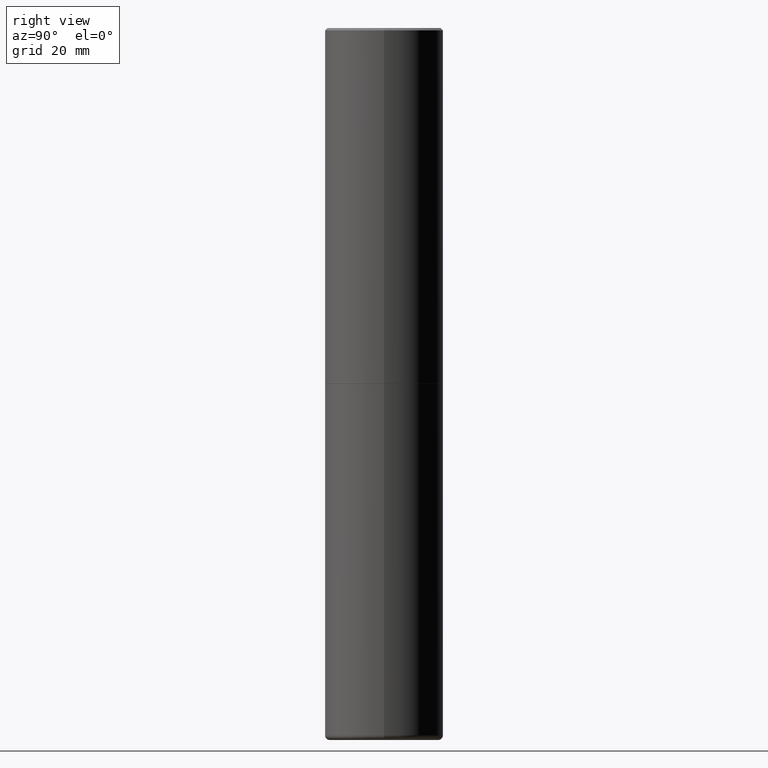
[diagram: clean part render]
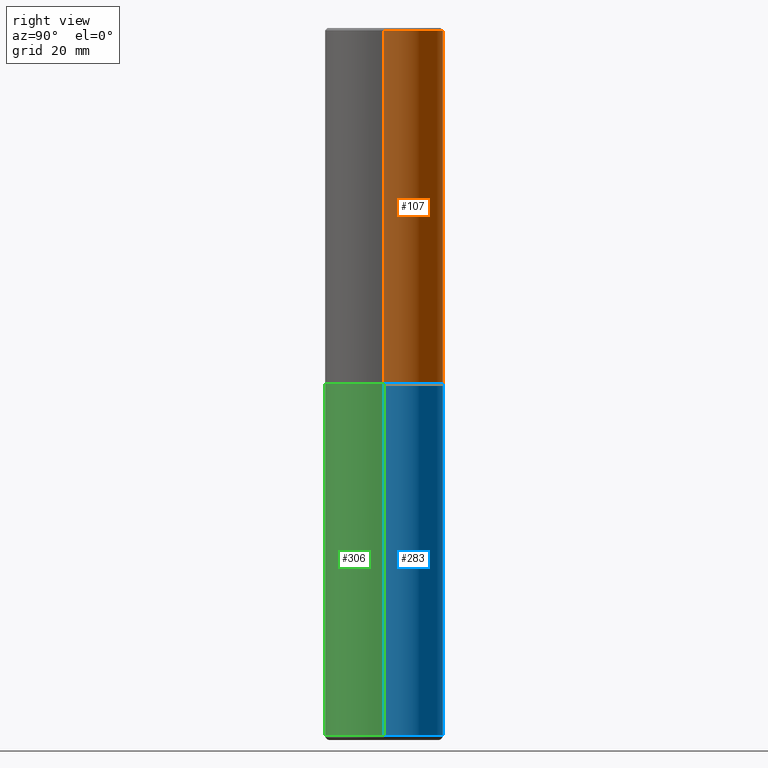
[diagram: same view with three faces highlighted in distinct colors, each labeled with its STEP entity id]
A machine part, right view with three faces highlighted in distinct colors.
Their STEP definitions:

[orange] entity #107 — the highlighted cylindrical surface (partial cylindrical patch) has radius 12.5006 mm, axis along (-0, 0, 1).
#6 = CARTESIAN_POINT ( 'NONE',  ( 0.4921500000000000319, -3.446223716380123138E-15, -0.02000000000000010797 ) ) ;
#16 = CYLINDRICAL_SURFACE ( 'NONE', #273, 0.4921500000000001984 ) ;
#27 = VERTEX_POINT ( 'NONE', #185 ) ;
#33 = VERTEX_POINT ( 'NONE', #6 ) ;
#35 = DIRECTION ( 'NONE',  ( -2.445468806185136597E-29, 3.491481338843145583E-15, 1.000000000000000000 ) ) ;
#37 = LINE ( 'NONE', #223, #174 ) ;
#42 = DIRECTION ( 'NONE',  ( -2.445468806185136597E-29, 3.491481338843145583E-15, 1.000000000000000000 ) ) ;
#63 = AXIS2_PLACEMENT_3D ( 'NONE', #154, #414, #378 ) ;
#84 = CARTESIAN_POINT ( 'NONE',  ( 0.4921500000000003094, -1.374247054968661252E-14, -2.951700000000000212 ) ) ;
#89 = VERTEX_POINT ( 'NONE', #84 ) ;
#93 = DIRECTION ( 'NONE',  ( -2.445468806185136877E-29, 3.491481338843145188E-15, 1.000000000000000000 ) ) ;
#107 = ADVANCED_FACE ( 'NONE', ( #220 ), #16, .T. ) ;
#113 = ORIENTED_EDGE ( 'NONE', *, *, #339, .T. ) ;
#120 = DIRECTION ( 'NONE',  ( -2.445468806185136877E-29, 3.491481338843145188E-15, 1.000000000000000000 ) ) ;
#125 = CARTESIAN_POINT ( 'NONE',  ( 0.000000000000000000, 0.000000000000000000, 0.000000000000000000 ) ) ;
#129 = DIRECTION ( 'NONE',  ( 1.000000000000000000, -6.982962677686265922E-15, 0.000000000000000000 ) ) ;
#154 = CARTESIAN_POINT ( 'NONE',  ( 4.890937612370299433E-31, -6.982962677686328587E-17, -0.02000000000000010797 ) ) ;
#169 = ORIENTED_EDGE ( 'NONE', *, *, #197, .F. ) ;
#174 = VECTOR ( 'NONE', #93, 39.37007874015748143 ) ;
#185 = CARTESIAN_POINT ( 'NONE',  ( -0.4921500000000003094, -1.690881473276752982E-15, -2.951700000000000212 ) ) ;
#197 = EDGE_CURVE ( 'NONE', #33, #281, #262, .T. ) ;
#204 = AXIS2_PLACEMENT_3D ( 'NONE', #415, #35, #129 ) ;
#220 = FACE_OUTER_BOUND ( 'NONE', #368, .T. ) ;
#223 = CARTESIAN_POINT ( 'NONE',  ( -0.4921500000000001984, 3.496936074043334475E-15, -2.420853904668952630E-29 ) ) ;
#224 = LINE ( 'NONE', #260, #297 ) ;
#245 = ORIENTED_EDGE ( 'NONE', *, *, #277, .T. ) ;
#260 = CARTESIAN_POINT ( 'NONE',  ( 0.4921500000000001984, -3.436665081823297354E-15, 2.399810400207970443E-29 ) ) ;
#262 = CIRCLE ( 'NONE', #63, 0.4921500000000000319 ) ;
#273 = AXIS2_PLACEMENT_3D ( 'NONE', #125, #42, #399 ) ;
#277 = EDGE_CURVE ( 'NONE', #27, #281, #37, .T. ) ;
#281 = VERTEX_POINT ( 'NONE', #390 ) ;
#297 = VECTOR ( 'NONE', #120, 39.37007874015748143 ) ;
#327 = EDGE_CURVE ( 'NONE', #89, #33, #224, .T. ) ;
#339 = EDGE_CURVE ( 'NONE', #89, #27, #351, .T. ) ;
#351 = CIRCLE ( 'NONE', #204, 0.4921500000000003094 ) ;
#368 = EDGE_LOOP ( 'NONE', ( #113, #245, #169, #418 ) ) ;
#378 = DIRECTION ( 'NONE',  ( 1.000000000000000000, -6.982962677686265922E-15, 0.000000000000000000 ) ) ;
#390 = CARTESIAN_POINT ( 'NONE',  ( -0.4921500000000000319, 3.366835455046432873E-15, -0.02000000000000010797 ) ) ;
#399 = DIRECTION ( 'NONE',  ( 1.000000000000000000, -6.982962677686266711E-15, 4.876176775795935232E-29 ) ) ;
#414 = DIRECTION ( 'NONE',  ( -2.445468806185136597E-29, 3.491481338843145583E-15, 1.000000000000000000 ) ) ;
#415 = CARTESIAN_POINT ( 'NONE',  ( 7.218290275216666916E-29, -1.030580546786331359E-14, -2.951700000000000212 ) ) ;
#418 = ORIENTED_EDGE ( 'NONE', *, *, #327, .F. ) ;

[blue] entity #283 — the highlighted cylindrical surface (partial cylindrical patch) has radius 12.5006 mm, axis along (-0, 0, 1).
#10 = CIRCLE ( 'NONE', #192, 0.4921500000000000319 ) ;
#31 = DIRECTION ( 'NONE',  ( -2.445468806185136597E-29, 3.491481338843145583E-15, 1.000000000000000000 ) ) ;
#49 = DIRECTION ( 'NONE',  ( 1.000000000000000000, -6.982962677686265133E-15, 0.000000000000000000 ) ) ;
#61 = EDGE_CURVE ( 'NONE', #406, #402, #10, .T. ) ;
#72 = CARTESIAN_POINT ( 'NONE',  ( -0.4921499999999999764, 3.496936074043332897E-15, -2.420853904668951509E-29 ) ) ;
#81 = ORIENTED_EDGE ( 'NONE', *, *, #96, .F. ) ;
#96 = EDGE_CURVE ( 'NONE', #406, #250, #239, .T. ) ;
#121 = ORIENTED_EDGE ( 'NONE', *, *, #188, .F. ) ;
#126 = CARTESIAN_POINT ( 'NONE',  ( 0.4921499999999999764, -1.374596203102545079E-14, -2.952700000000000102 ) ) ;
#130 = ORIENTED_EDGE ( 'NONE', *, *, #133, .T. ) ;
#133 = EDGE_CURVE ( 'NONE', #402, #149, #153, .T. ) ;
#139 = CIRCLE ( 'NONE', #251, 0.4921499999999999764 ) ;
#149 = VERTEX_POINT ( 'NONE', #249 ) ;
#153 = LINE ( 'NONE', #72, #380 ) ;
#157 = FACE_OUTER_BOUND ( 'NONE', #213, .T. ) ;
#160 = DIRECTION ( 'NONE',  ( -2.445468806185136597E-29, 3.491481338843145583E-15, 1.000000000000000000 ) ) ;
#164 = VECTOR ( 'NONE', #341, 39.37007874015748143 ) ;
#170 = DIRECTION ( 'NONE',  ( -2.445468806185136877E-29, 3.491481338843145188E-15, 1.000000000000000000 ) ) ;
#181 = CARTESIAN_POINT ( 'NONE',  ( 7.220735744022852519E-29, -1.030929694920215502E-14, -2.952700000000000102 ) ) ;
#184 = AXIS2_PLACEMENT_3D ( 'NONE', #347, #160, #417 ) ;
#188 = EDGE_CURVE ( 'NONE', #250, #149, #139, .T. ) ;
#192 = AXIS2_PLACEMENT_3D ( 'NONE', #333, #206, #49 ) ;
#194 = CARTESIAN_POINT ( 'NONE',  ( 0.4921500000000002539, -2.391804376361107326E-14, -5.866100000000000314 ) ) ;
#200 = CARTESIAN_POINT ( 'NONE',  ( -0.4921500000000002539, -1.698444260774444222E-14, -5.866100000000000314 ) ) ;
#206 = DIRECTION ( 'NONE',  ( -2.445468806185136597E-29, 3.491481338843145583E-15, 1.000000000000000000 ) ) ;
#209 = CARTESIAN_POINT ( 'NONE',  ( 0.4921499999999999764, -3.436665081823295777E-15, 2.399810400207969603E-29 ) ) ;
#213 = EDGE_LOOP ( 'NONE', ( #375, #130, #121, #81 ) ) ;
#239 = LINE ( 'NONE', #209, #164 ) ;
#249 = CARTESIAN_POINT ( 'NONE',  ( -0.4921499999999999764, -1.189840174145163414E-14, -2.952700000000000102 ) ) ;
#250 = VERTEX_POINT ( 'NONE', #126 ) ;
#251 = AXIS2_PLACEMENT_3D ( 'NONE', #181, #31, #407 ) ;
#253 = CYLINDRICAL_SURFACE ( 'NONE', #184, 0.4921499999999999764 ) ;
#283 = ADVANCED_FACE ( 'NONE', ( #157 ), #253, .T. ) ;
#333 = CARTESIAN_POINT ( 'NONE',  ( 1.434536456396262923E-28, -2.048137868178777591E-14, -5.866100000000000314 ) ) ;
#341 = DIRECTION ( 'NONE',  ( -2.445468806185136877E-29, 3.491481338843145188E-15, 1.000000000000000000 ) ) ;
#347 = CARTESIAN_POINT ( 'NONE',  ( 0.000000000000000000, 0.000000000000000000, 0.000000000000000000 ) ) ;
#375 = ORIENTED_EDGE ( 'NONE', *, *, #61, .T. ) ;
#380 = VECTOR ( 'NONE', #170, 39.37007874015748143 ) ;
#402 = VERTEX_POINT ( 'NONE', #200 ) ;
#406 = VERTEX_POINT ( 'NONE', #194 ) ;
#407 = DIRECTION ( 'NONE',  ( 1.000000000000000000, -6.982962677686265922E-15, 0.000000000000000000 ) ) ;
#417 = DIRECTION ( 'NONE',  ( 1.000000000000000000, -6.982962677686265922E-15, 4.876176775795935793E-29 ) ) ;

[green] entity #306 — the highlighted cylindrical surface (partial cylindrical patch) has radius 12.5006 mm, axis along (-0, 0, 1).
#1 = CARTESIAN_POINT ( 'NONE',  ( 7.220735744022852519E-29, -1.030929694920215502E-14, -2.952700000000000102 ) ) ;
#8 = DIRECTION ( 'NONE',  ( 1.000000000000000000, -6.982962677686265922E-15, 0.000000000000000000 ) ) ;
#72 = CARTESIAN_POINT ( 'NONE',  ( -0.4921499999999999764, 3.496936074043332897E-15, -2.420853904668951509E-29 ) ) ;
#73 = CIRCLE ( 'NONE', #228, 0.4921500000000000319 ) ;
#86 = CIRCLE ( 'NONE', #198, 0.4921499999999999764 ) ;
#96 = EDGE_CURVE ( 'NONE', #406, #250, #239, .T. ) ;
#108 = EDGE_LOOP ( 'NONE', ( #309, #241, #248, #376 ) ) ;
#126 = CARTESIAN_POINT ( 'NONE',  ( 0.4921499999999999764, -1.374596203102545079E-14, -2.952700000000000102 ) ) ;
#133 = EDGE_CURVE ( 'NONE', #402, #149, #153, .T. ) ;
#149 = VERTEX_POINT ( 'NONE', #249 ) ;
#153 = LINE ( 'NONE', #72, #380 ) ;
#155 = FACE_OUTER_BOUND ( 'NONE', #108, .T. ) ;
#163 = DIRECTION ( 'NONE',  ( 1.000000000000000000, -6.982962677686265133E-15, 0.000000000000000000 ) ) ;
#164 = VECTOR ( 'NONE', #341, 39.37007874015748143 ) ;
#170 = DIRECTION ( 'NONE',  ( -2.445468806185136877E-29, 3.491481338843145188E-15, 1.000000000000000000 ) ) ;
#182 = CYLINDRICAL_SURFACE ( 'NONE', #404, 0.4921499999999999764 ) ;
#190 = DIRECTION ( 'NONE',  ( 1.000000000000000000, -6.982962677686265922E-15, 4.876176775795935793E-29 ) ) ;
#194 = CARTESIAN_POINT ( 'NONE',  ( 0.4921500000000002539, -2.391804376361107326E-14, -5.866100000000000314 ) ) ;
#198 = AXIS2_PLACEMENT_3D ( 'NONE', #1, #266, #8 ) ;
#200 = CARTESIAN_POINT ( 'NONE',  ( -0.4921500000000002539, -1.698444260774444222E-14, -5.866100000000000314 ) ) ;
#205 = EDGE_CURVE ( 'NONE', #149, #250, #86, .T. ) ;
#209 = CARTESIAN_POINT ( 'NONE',  ( 0.4921499999999999764, -3.436665081823295777E-15, 2.399810400207969603E-29 ) ) ;
#214 = CARTESIAN_POINT ( 'NONE',  ( 0.000000000000000000, 0.000000000000000000, 0.000000000000000000 ) ) ;
#225 = EDGE_CURVE ( 'NONE', #402, #406, #73, .T. ) ;
#228 = AXIS2_PLACEMENT_3D ( 'NONE', #303, #335, #163 ) ;
#239 = LINE ( 'NONE', #209, #164 ) ;
#241 = ORIENTED_EDGE ( 'NONE', *, *, #225, .T. ) ;
#248 = ORIENTED_EDGE ( 'NONE', *, *, #96, .T. ) ;
#249 = CARTESIAN_POINT ( 'NONE',  ( -0.4921499999999999764, -1.189840174145163414E-14, -2.952700000000000102 ) ) ;
#250 = VERTEX_POINT ( 'NONE', #126 ) ;
#266 = DIRECTION ( 'NONE',  ( -2.445468806185136597E-29, 3.491481338843145583E-15, 1.000000000000000000 ) ) ;
#289 = DIRECTION ( 'NONE',  ( -2.445468806185136597E-29, 3.491481338843145583E-15, 1.000000000000000000 ) ) ;
#303 = CARTESIAN_POINT ( 'NONE',  ( 1.434536456396262923E-28, -2.048137868178777591E-14, -5.866100000000000314 ) ) ;
#306 = ADVANCED_FACE ( 'NONE', ( #155 ), #182, .T. ) ;
#309 = ORIENTED_EDGE ( 'NONE', *, *, #133, .F. ) ;
#335 = DIRECTION ( 'NONE',  ( -2.445468806185136597E-29, 3.491481338843145583E-15, 1.000000000000000000 ) ) ;
#341 = DIRECTION ( 'NONE',  ( -2.445468806185136877E-29, 3.491481338843145188E-15, 1.000000000000000000 ) ) ;
#376 = ORIENTED_EDGE ( 'NONE', *, *, #205, .F. ) ;
#380 = VECTOR ( 'NONE', #170, 39.37007874015748143 ) ;
#402 = VERTEX_POINT ( 'NONE', #200 ) ;
#404 = AXIS2_PLACEMENT_3D ( 'NONE', #214, #289, #190 ) ;
#406 = VERTEX_POINT ( 'NONE', #194 ) ;